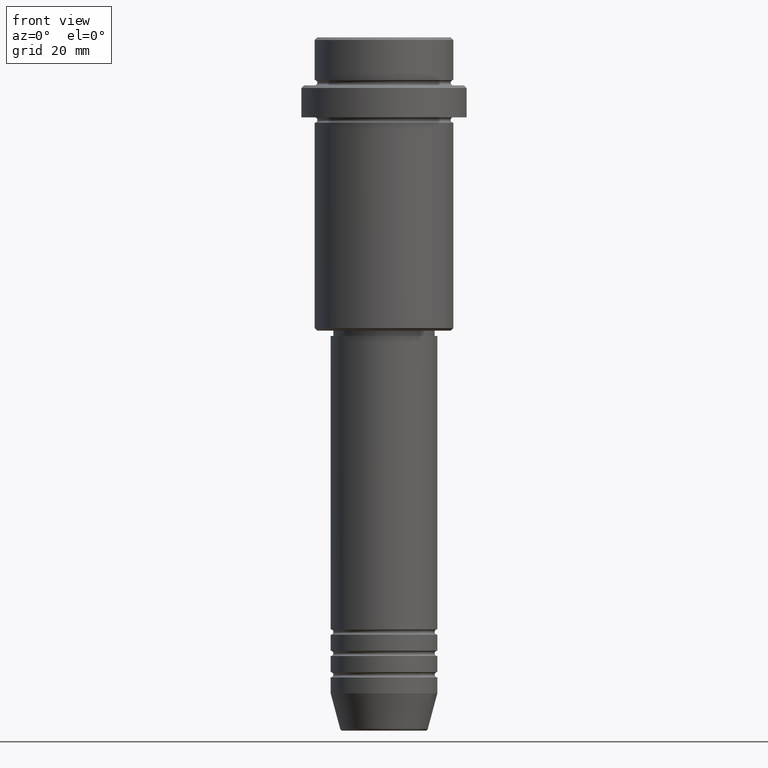
[diagram: clean part render]
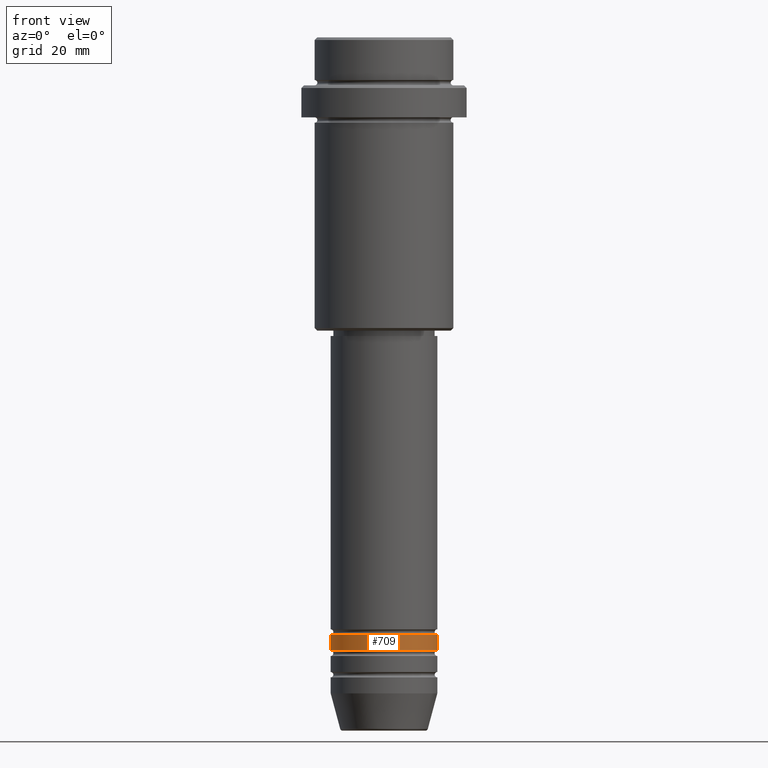
[diagram: same view with one face highlighted and labeled with its STEP entity id]
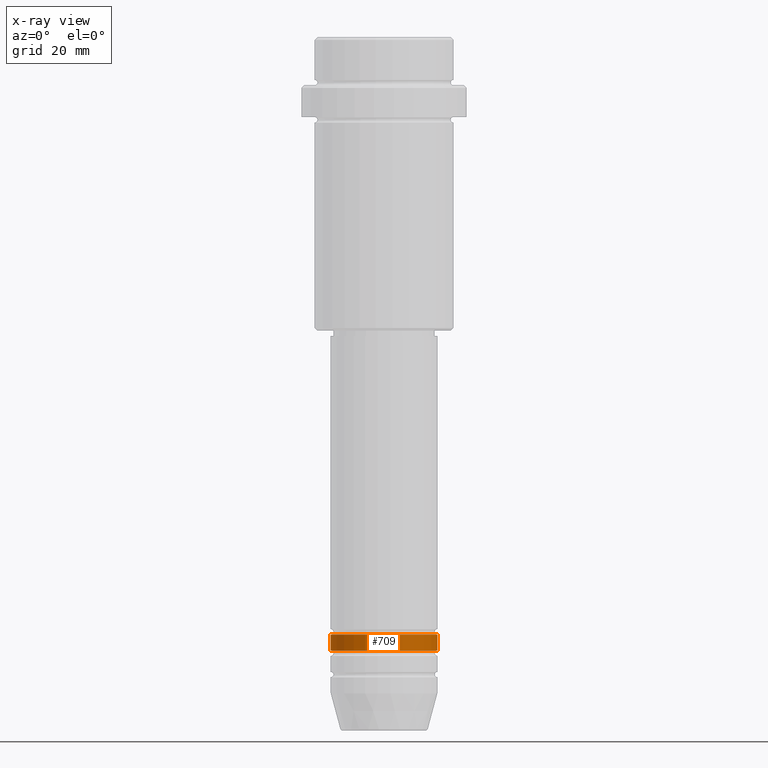
[diagram: x-ray of the same camera — body ghosted, the highlighted face saturated]
A machine part, front view. The second image highlights one B-rep face of the part: STEP entity #709.
The next image is the same camera in x-ray: the body ghosted, the highlighted face saturated — about 0% of this face is hidden behind the body in this view.
In plain terms, the highlighted cylindrical surface (partial cylindrical patch) has radius 10 mm, axis along (-0, -0, 1).
Its self-contained STEP definition (entity closure, byte-faithful):
#21 = DIRECTION ( 'NONE',  ( 1.000000000000000000, 0.000000000000000000, 0.000000000000000000 ) ) ;
#74 = VERTEX_POINT ( 'NONE', #411 ) ;
#265 = EDGE_CURVE ( 'NONE', #632, #578, #526, .T. ) ;
#275 = CARTESIAN_POINT ( 'NONE',  ( 0.000000000000000000, 0.000000000000000000, -114.9999999999998863 ) ) ;
#305 = EDGE_CURVE ( 'NONE', #74, #402, #1078, .T. ) ;
#332 = CARTESIAN_POINT ( 'NONE',  ( 10.00000000000000000, 0.000000000000000000, -111.9999999999998721 ) ) ;
#338 = FACE_OUTER_BOUND ( 'NONE', #1250, .T. ) ;
#342 = VECTOR ( 'NONE', #773, 1000.000000000000000 ) ;
#368 = DIRECTION ( 'NONE',  ( 1.000000000000000000, 0.000000000000000000, 0.000000000000000000 ) ) ;
#380 = CARTESIAN_POINT ( 'NONE',  ( 10.00000000000000000, 0.000000000000000000, -114.9999999999998863 ) ) ;
#402 = VERTEX_POINT ( 'NONE', #380 ) ;
#411 = CARTESIAN_POINT ( 'NONE',  ( -10.00000000000000000, 1.224646799147353256E-15, -114.9999999999998863 ) ) ;
#526 = CIRCLE ( 'NONE', #1319, 10.00000000000000000 ) ;
#578 = VERTEX_POINT ( 'NONE', #332 ) ;
#605 = DIRECTION ( 'NONE',  ( -0.000000000000000000, -0.000000000000000000, 1.000000000000000000 ) ) ;
#632 = VERTEX_POINT ( 'NONE', #697 ) ;
#691 = CARTESIAN_POINT ( 'NONE',  ( 0.000000000000000000, 0.000000000000000000, -111.9999999999998721 ) ) ;
#697 = CARTESIAN_POINT ( 'NONE',  ( -10.00000000000000000, 1.224646799147353256E-15, -111.9999999999998721 ) ) ;
#699 = ORIENTED_EDGE ( 'NONE', *, *, #265, .F. ) ;
#701 = LINE ( 'NONE', #917, #342 ) ;
#709 = ADVANCED_FACE ( 'NONE', ( #338 ), #999, .T. ) ;
#773 = DIRECTION ( 'NONE',  ( -0.000000000000000000, -0.000000000000000000, 1.000000000000000000 ) ) ;
#785 = AXIS2_PLACEMENT_3D ( 'NONE', #894, #901, #368 ) ;
#824 = EDGE_CURVE ( 'NONE', #74, #632, #950, .T. ) ;
#827 = DIRECTION ( 'NONE',  ( -0.000000000000000000, -0.000000000000000000, 1.000000000000000000 ) ) ;
#845 = DIRECTION ( 'NONE',  ( 1.000000000000000000, 0.000000000000000000, 0.000000000000000000 ) ) ;
#894 = CARTESIAN_POINT ( 'NONE',  ( 0.000000000000000000, 0.000000000000000000, 0.000000000000000000 ) ) ;
#901 = DIRECTION ( 'NONE',  ( -0.000000000000000000, -0.000000000000000000, 1.000000000000000000 ) ) ;
#917 = CARTESIAN_POINT ( 'NONE',  ( 10.00000000000000000, 0.000000000000000000, 0.000000000000000000 ) ) ;
#950 = LINE ( 'NONE', #1268, #1303 ) ;
#989 = ORIENTED_EDGE ( 'NONE', *, *, #824, .F. ) ;
#999 = CYLINDRICAL_SURFACE ( 'NONE', #785, 10.00000000000000000 ) ;
#1019 = DIRECTION ( 'NONE',  ( -0.000000000000000000, -0.000000000000000000, 1.000000000000000000 ) ) ;
#1078 = CIRCLE ( 'NONE', #1340, 10.00000000000000000 ) ;
#1146 = EDGE_CURVE ( 'NONE', #402, #578, #701, .T. ) ;
#1250 = EDGE_LOOP ( 'NONE', ( #989, #1265, #1327, #699 ) ) ;
#1265 = ORIENTED_EDGE ( 'NONE', *, *, #305, .T. ) ;
#1268 = CARTESIAN_POINT ( 'NONE',  ( -10.00000000000000000, 1.224646799147353256E-15, 0.000000000000000000 ) ) ;
#1303 = VECTOR ( 'NONE', #605, 1000.000000000000000 ) ;
#1319 = AXIS2_PLACEMENT_3D ( 'NONE', #691, #1019, #21 ) ;
#1327 = ORIENTED_EDGE ( 'NONE', *, *, #1146, .T. ) ;
#1340 = AXIS2_PLACEMENT_3D ( 'NONE', #275, #827, #845 ) ;